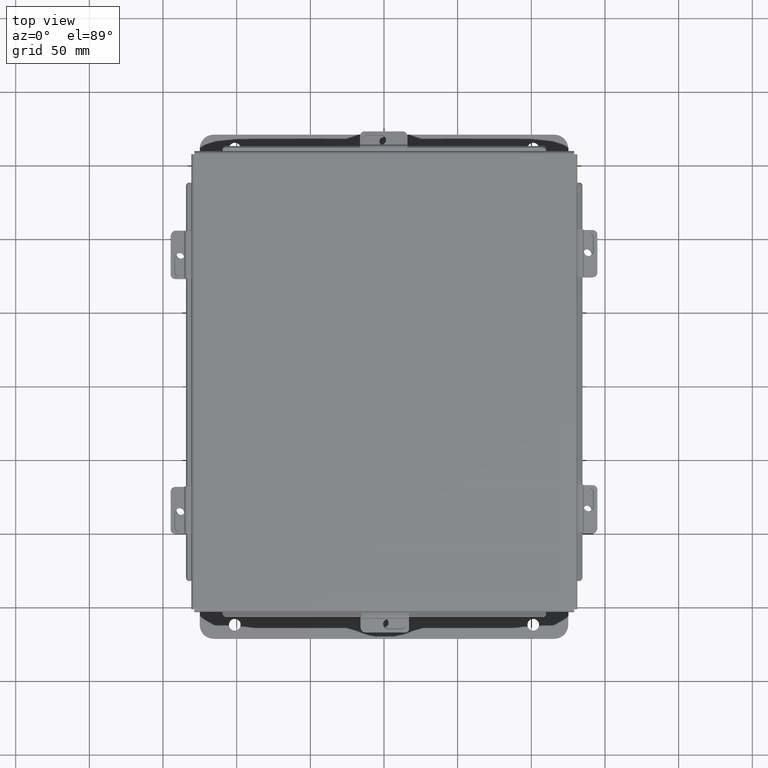
[diagram: clean part render]
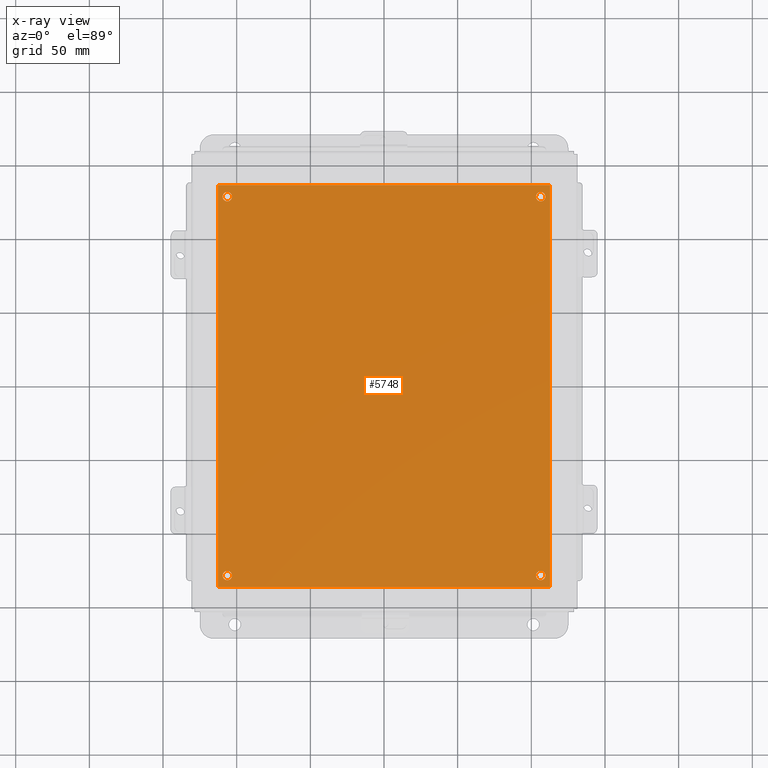
[diagram: x-ray — body ghosted, one internal face saturated and labeled with its STEP entity id]
A machine part, top view, then the same camera in x-ray: the body is ghosted and one INTERNAL B-rep face — a face not visible from any outside direction — is saturated and labeled: STEP entity #5748.
In plain terms, the highlighted planar face has unit normal (0, 0, -1).
Its self-contained STEP definition (entity closure, byte-faithful):
#24 = CARTESIAN_POINT ( 'NONE',  ( 0.0000000000000000000, 0.0000000000000000000, 0.0000000000000000000 ) ) ;
#41 = VERTEX_POINT ( 'NONE', #8678 ) ;
#237 = VECTOR ( 'NONE', #3275, 39.37007874015748100 ) ;
#340 = VECTOR ( 'NONE', #5380, 39.37007874015748100 ) ;
#347 = AXIS2_PLACEMENT_3D ( 'NONE', #3881, #9086, #4622 ) ;
#673 = DIRECTION ( 'NONE',  ( -1.000000000000000000, 0.0000000000000000000, 0.0000000000000000000 ) ) ;
#776 = CIRCLE ( 'NONE', #2469, 0.1250000000000000600 ) ;
#830 = EDGE_LOOP ( 'NONE', ( #2308, #1704 ) ) ;
#858 = AXIS2_PLACEMENT_3D ( 'NONE', #3855, #9054, #4589 ) ;
#969 = VERTEX_POINT ( 'NONE', #4932 ) ;
#1043 = DIRECTION ( 'NONE',  ( 0.0000000000000000000, 0.0000000000000000000, 1.000000000000000000 ) ) ;
#1097 = AXIS2_PLACEMENT_3D ( 'NONE', #2912, #8862, #9312 ) ;
#1285 = FACE_BOUND ( 'NONE', #5537, .T. ) ;
#1344 = CIRCLE ( 'NONE', #8707, 0.1250000000000004400 ) ;
#1422 = DIRECTION ( 'NONE',  ( -1.000000000000000000, 0.0000000000000000000, 0.0000000000000000000 ) ) ;
#1469 = DIRECTION ( 'NONE',  ( -1.000000000000000000, 0.0000000000000000000, -0.0000000000000000000 ) ) ;
#1604 = EDGE_CURVE ( 'NONE', #5430, #6915, #2426, .T. ) ;
#1649 = DIRECTION ( 'NONE',  ( -1.000000000000000000, 0.0000000000000000000, 0.0000000000000000000 ) ) ;
#1655 = ORIENTED_EDGE ( 'NONE', *, *, #8440, .F. ) ;
#1687 = DIRECTION ( 'NONE',  ( 1.000000000000000000, 0.0000000000000000000, 0.0000000000000000000 ) ) ;
#1704 = ORIENTED_EDGE ( 'NONE', *, *, #9543, .F. ) ;
#1785 = ORIENTED_EDGE ( 'NONE', *, *, #3068, .F. ) ;
#2042 = VERTEX_POINT ( 'NONE', #6318 ) ;
#2056 = CIRCLE ( 'NONE', #9557, 0.1250000000000004400 ) ;
#2107 = VECTOR ( 'NONE', #3758, 39.37007874015748100 ) ;
#2255 = DIRECTION ( 'NONE',  ( 0.0000000000000000000, 0.0000000000000000000, 1.000000000000000000 ) ) ;
#2308 = ORIENTED_EDGE ( 'NONE', *, *, #8468, .F. ) ;
#2372 = LINE ( 'NONE', #24, #340 ) ;
#2378 = EDGE_CURVE ( 'NONE', #6915, #5430, #776, .T. ) ;
#2426 = CIRCLE ( 'NONE', #1097, 0.1250000000000000600 ) ;
#2469 = AXIS2_PLACEMENT_3D ( 'NONE', #8879, #2255, #1422 ) ;
#2533 = CARTESIAN_POINT ( 'NONE',  ( 0.0000000000000000000, 0.0000000000000000000, 0.0000000000000000000 ) ) ;
#2614 = FACE_OUTER_BOUND ( 'NONE', #4174, .T. ) ;
#2632 = CARTESIAN_POINT ( 'NONE',  ( 0.2499999999999998100, 10.43799999999999900, 0.0000000000000000000 ) ) ;
#2691 = CARTESIAN_POINT ( 'NONE',  ( 8.500000000000001800, 0.3120000000000036600, 0.0000000000000000000 ) ) ;
#2775 = EDGE_CURVE ( 'NONE', #41, #8848, #9065, .T. ) ;
#2871 = CIRCLE ( 'NONE', #858, 0.1250000000000000300 ) ;
#2912 = CARTESIAN_POINT ( 'NONE',  ( 0.2500000000000020000, 0.3120000000000015000, 0.0000000000000000000 ) ) ;
#2981 = ORIENTED_EDGE ( 'NONE', *, *, #1604, .F. ) ;
#3045 = AXIS2_PLACEMENT_3D ( 'NONE', #2632, #7122, #1687 ) ;
#3068 = EDGE_CURVE ( 'NONE', #3630, #2042, #9175, .T. ) ;
#3194 = EDGE_CURVE ( 'NONE', #8848, #41, #2056, .T. ) ;
#3198 = VERTEX_POINT ( 'NONE', #3738 ) ;
#3275 = DIRECTION ( 'NONE',  ( -0.0000000000000000000, -1.000000000000000000, -0.0000000000000000000 ) ) ;
#3524 = AXIS2_PLACEMENT_3D ( 'NONE', #5231, #5977, #1469 ) ;
#3552 = AXIS2_PLACEMENT_3D ( 'NONE', #7933, #3946, #1649 ) ;
#3630 = VERTEX_POINT ( 'NONE', #6106 ) ;
#3702 = CARTESIAN_POINT ( 'NONE',  ( 0.3750000000000020000, 0.3120000000000015000, 0.0000000000000000000 ) ) ;
#3738 = CARTESIAN_POINT ( 'NONE',  ( 0.0000000000000000000, 10.75000000000000200, 0.0000000000000000000 ) ) ;
#3758 = DIRECTION ( 'NONE',  ( -1.000000000000000000, -0.0000000000000000000, -0.0000000000000000000 ) ) ;
#3855 = CARTESIAN_POINT ( 'NONE',  ( 0.2499999999999998100, 10.43799999999999900, 0.0000000000000000000 ) ) ;
#3881 = CARTESIAN_POINT ( 'NONE',  ( 8.625000000000001800, 0.3120000000000036600, 0.0000000000000000000 ) ) ;
#3946 = DIRECTION ( 'NONE',  ( 0.0000000000000000000, 0.0000000000000000000, 1.000000000000000000 ) ) ;
#4003 = VERTEX_POINT ( 'NONE', #6482 ) ;
#4111 = CARTESIAN_POINT ( 'NONE',  ( 8.875000000000000000, 0.0000000000000000000, 0.0000000000000000000 ) ) ;
#4174 = EDGE_LOOP ( 'NONE', ( #5816, #4882, #8821, #8012 ) ) ;
#4266 = LINE ( 'NONE', #2533, #237 ) ;
#4376 = EDGE_LOOP ( 'NONE', ( #7657, #2981 ) ) ;
#4561 = LINE ( 'NONE', #8302, #8300 ) ;
#4586 = FACE_BOUND ( 'NONE', #6853, .T. ) ;
#4589 = DIRECTION ( 'NONE',  ( 1.000000000000000000, 0.0000000000000000000, 0.0000000000000000000 ) ) ;
#4596 = CIRCLE ( 'NONE', #347, 0.1250000000000004400 ) ;
#4622 = DIRECTION ( 'NONE',  ( 1.000000000000000000, 0.0000000000000000000, 0.0000000000000000000 ) ) ;
#4882 = ORIENTED_EDGE ( 'NONE', *, *, #8491, .T. ) ;
#4932 = CARTESIAN_POINT ( 'NONE',  ( 8.750000000000001800, 0.3120000000000036600, 0.0000000000000000000 ) ) ;
#5230 = DIRECTION ( 'NONE',  ( 0.0000000000000000000, 0.0000000000000000000, 1.000000000000000000 ) ) ;
#5231 = CARTESIAN_POINT ( 'NONE',  ( 0.0000000000000000000, 0.0000000000000000000, 0.0000000000000000000 ) ) ;
#5380 = DIRECTION ( 'NONE',  ( 1.000000000000000000, 0.0000000000000000000, 0.0000000000000000000 ) ) ;
#5388 = CARTESIAN_POINT ( 'NONE',  ( 0.1250000000000019200, 0.3120000000000015000, 0.0000000000000000000 ) ) ;
#5430 = VERTEX_POINT ( 'NONE', #5388 ) ;
#5470 = ORIENTED_EDGE ( 'NONE', *, *, #2775, .F. ) ;
#5537 = EDGE_LOOP ( 'NONE', ( #5470, #5806 ) ) ;
#5574 = CARTESIAN_POINT ( 'NONE',  ( 8.625000000000001800, 0.3120000000000036600, 0.0000000000000000000 ) ) ;
#5748 = ADVANCED_FACE ( 'NONE', ( #8539, #6594, #1285, #4586, #2614 ), #9683, .F. ) ;
#5806 = ORIENTED_EDGE ( 'NONE', *, *, #3194, .F. ) ;
#5816 = ORIENTED_EDGE ( 'NONE', *, *, #7708, .T. ) ;
#5977 = DIRECTION ( 'NONE',  ( 0.0000000000000000000, 0.0000000000000000000, -1.000000000000000000 ) ) ;
#6106 = CARTESIAN_POINT ( 'NONE',  ( 0.3749999999999998300, 10.43799999999999900, 0.0000000000000000000 ) ) ;
#6318 = CARTESIAN_POINT ( 'NONE',  ( 0.1249999999999997900, 10.43799999999999900, 0.0000000000000000000 ) ) ;
#6319 = DIRECTION ( 'NONE',  ( 1.000000000000000000, 0.0000000000000000000, 0.0000000000000000000 ) ) ;
#6482 = CARTESIAN_POINT ( 'NONE',  ( 0.0000000000000000000, 0.0000000000000000000, 0.0000000000000000000 ) ) ;
#6559 = CARTESIAN_POINT ( 'NONE',  ( 8.875000000000000000, 10.75000000000000200, 0.0000000000000000000 ) ) ;
#6594 = FACE_BOUND ( 'NONE', #830, .T. ) ;
#6686 = VERTEX_POINT ( 'NONE', #2691 ) ;
#6798 = LINE ( 'NONE', #7484, #2107 ) ;
#6853 = EDGE_LOOP ( 'NONE', ( #1785, #1655 ) ) ;
#6915 = VERTEX_POINT ( 'NONE', #3702 ) ;
#7002 = EDGE_CURVE ( 'NONE', #8018, #3198, #6798, .T. ) ;
#7122 = DIRECTION ( 'NONE',  ( 0.0000000000000000000, 0.0000000000000000000, 1.000000000000000000 ) ) ;
#7484 = CARTESIAN_POINT ( 'NONE',  ( 0.0000000000000000000, 10.75000000000000200, 0.0000000000000000000 ) ) ;
#7537 = EDGE_CURVE ( 'NONE', #7860, #8018, #4561, .T. ) ;
#7657 = ORIENTED_EDGE ( 'NONE', *, *, #2378, .F. ) ;
#7708 = EDGE_CURVE ( 'NONE', #3198, #4003, #4266, .T. ) ;
#7860 = VERTEX_POINT ( 'NONE', #4111 ) ;
#7933 = CARTESIAN_POINT ( 'NONE',  ( 8.625000000000000000, 10.43799999999999900, 0.0000000000000000000 ) ) ;
#7936 = CARTESIAN_POINT ( 'NONE',  ( 8.500000000000000000, 10.43799999999999900, 0.0000000000000000000 ) ) ;
#8012 = ORIENTED_EDGE ( 'NONE', *, *, #7002, .T. ) ;
#8018 = VERTEX_POINT ( 'NONE', #6559 ) ;
#8300 = VECTOR ( 'NONE', #9044, 39.37007874015748100 ) ;
#8302 = CARTESIAN_POINT ( 'NONE',  ( 8.875000000000000000, 0.0000000000000000000, 0.0000000000000000000 ) ) ;
#8440 = EDGE_CURVE ( 'NONE', #2042, #3630, #2871, .T. ) ;
#8468 = EDGE_CURVE ( 'NONE', #969, #6686, #4596, .T. ) ;
#8491 = EDGE_CURVE ( 'NONE', #4003, #7860, #2372, .T. ) ;
#8539 = FACE_BOUND ( 'NONE', #4376, .T. ) ;
#8678 = CARTESIAN_POINT ( 'NONE',  ( 8.750000000000000000, 10.43799999999999900, 0.0000000000000000000 ) ) ;
#8707 = AXIS2_PLACEMENT_3D ( 'NONE', #5574, #1043, #6319 ) ;
#8821 = ORIENTED_EDGE ( 'NONE', *, *, #7537, .T. ) ;
#8848 = VERTEX_POINT ( 'NONE', #7936 ) ;
#8862 = DIRECTION ( 'NONE',  ( 0.0000000000000000000, 0.0000000000000000000, 1.000000000000000000 ) ) ;
#8879 = CARTESIAN_POINT ( 'NONE',  ( 0.2500000000000020000, 0.3120000000000015000, 0.0000000000000000000 ) ) ;
#9044 = DIRECTION ( 'NONE',  ( 0.0000000000000000000, 1.000000000000000000, 0.0000000000000000000 ) ) ;
#9054 = DIRECTION ( 'NONE',  ( 0.0000000000000000000, 0.0000000000000000000, 1.000000000000000000 ) ) ;
#9065 = CIRCLE ( 'NONE', #3552, 0.1250000000000004400 ) ;
#9086 = DIRECTION ( 'NONE',  ( 0.0000000000000000000, 0.0000000000000000000, 1.000000000000000000 ) ) ;
#9175 = CIRCLE ( 'NONE', #3045, 0.1250000000000000300 ) ;
#9312 = DIRECTION ( 'NONE',  ( -1.000000000000000000, 0.0000000000000000000, 0.0000000000000000000 ) ) ;
#9543 = EDGE_CURVE ( 'NONE', #6686, #969, #1344, .T. ) ;
#9557 = AXIS2_PLACEMENT_3D ( 'NONE', #9682, #5230, #673 ) ;
#9682 = CARTESIAN_POINT ( 'NONE',  ( 8.625000000000000000, 10.43799999999999900, 0.0000000000000000000 ) ) ;
#9683 = PLANE ( 'NONE',  #3524 ) ;